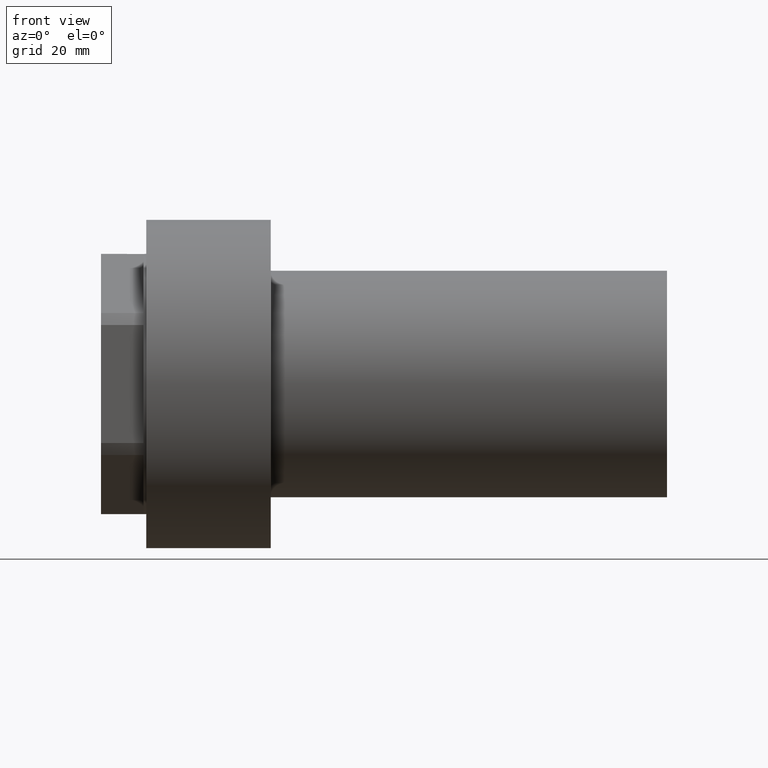
[diagram: clean part render]
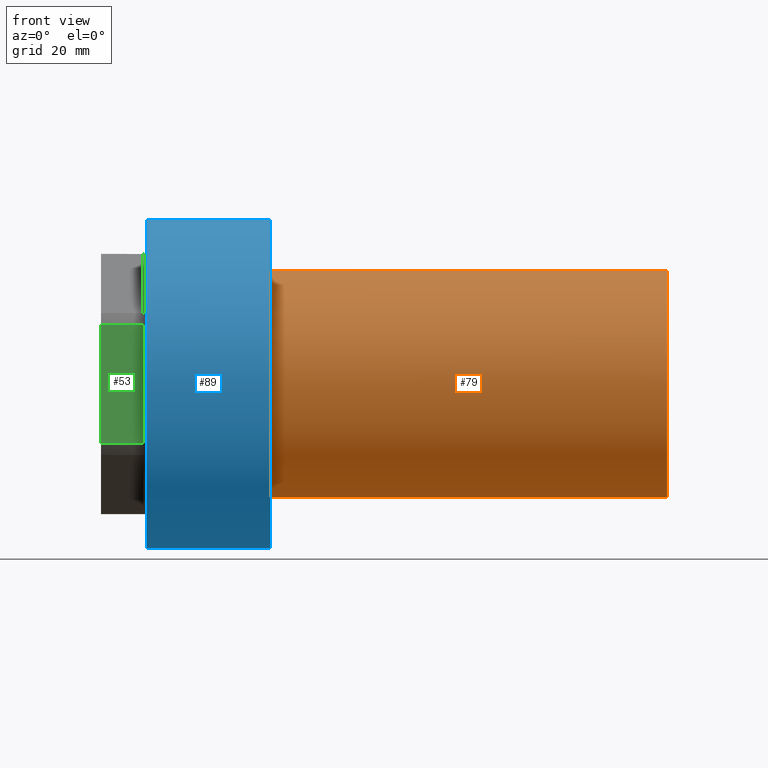
[diagram: same view with three faces highlighted in distinct colors, each labeled with its STEP entity id]
A machine part, front view with three faces highlighted in distinct colors.
Their STEP definitions:

[orange] entity #79 — the highlighted cylindrical surface (bore or boss wall) has radius 20 mm, axis along (-1, -0, -0).
#79 = ADVANCED_FACE( '', ( #169, #170 ), #171, .T. );
#169 = FACE_OUTER_BOUND( '', #268, .T. );
#170 = FACE_OUTER_BOUND( '', #269, .T. );
#171 = CYLINDRICAL_SURFACE( '', #270, 20.0000000000000 );
#268 = EDGE_LOOP( '', ( #415, #416, #417, #418 ) );
#269 = EDGE_LOOP( '', ( #419 ) );
#270 = AXIS2_PLACEMENT_3D( '', #420, #421, #422 );
#415 = ORIENTED_EDGE( '', *, *, #553, .F. );
#416 = ORIENTED_EDGE( '', *, *, #580, .T. );
#417 = ORIENTED_EDGE( '', *, *, #562, .T. );
#418 = ORIENTED_EDGE( '', *, *, #581, .T. );
#419 = ORIENTED_EDGE( '', *, *, #567, .T. );
#420 = CARTESIAN_POINT( '', ( 38.3031897014172, 0.000000000000000, 0.000000000000000 ) );
#421 = DIRECTION( '', ( -1.00000000000000, -0.000000000000000, -0.000000000000000 ) );
#422 = DIRECTION( '', ( 0.000000000000000, 0.000000000000000, -1.00000000000000 ) );
#553 = EDGE_CURVE( '', #653, #654, #655, .T. );
#562 = EDGE_CURVE( '', #666, #667, #669, .T. );
#567 = EDGE_CURVE( '', #676, #676, #677, .T. );
#580 = EDGE_CURVE( '', #653, #666, #695, .F. );
#581 = EDGE_CURVE( '', #667, #654, #696, .T. );
#653 = VERTEX_POINT( '', #781 );
#654 = VERTEX_POINT( '', #782 );
#655 = CIRCLE( '', #783, 20.0000000000000 );
#666 = VERTEX_POINT( '', #795 );
#667 = VERTEX_POINT( '', #796 );
#669 = ELLIPSE( '', #799, 28.2842712474619, 20.0000000000000 );
#676 = VERTEX_POINT( '', #807 );
#677 = CIRCLE( '', #808, 20.0000000000000 );
#695 = LINE( '', #832, #833 );
#696 = LINE( '', #834, #835 );
#781 = CARTESIAN_POINT( '', ( 92.0000000000000, 18.0000000000000, 8.71779788708132 ) );
#782 = CARTESIAN_POINT( '', ( 92.0000000000000, 18.0000000000000, -8.71779788708132 ) );
#783 = AXIS2_PLACEMENT_3D( '', #910, #911, #912 );
#795 = CARTESIAN_POINT( '', ( 26.0000000000000, 18.0000000000000, 8.71779788708130 ) );
#796 = CARTESIAN_POINT( '', ( 26.0000000000000, 18.0000000000000, -8.71779788708130 ) );
#799 = AXIS2_PLACEMENT_3D( '', #924, #925, #926 );
#807 = CARTESIAN_POINT( '', ( 22.0000000000000, 0.000000000000000, -20.0000000000000 ) );
#808 = AXIS2_PLACEMENT_3D( '', #931, #932, #933 );
#832 = CARTESIAN_POINT( '', ( 38.3031897014172, 18.0000000000000, 8.71779788708132 ) );
#833 = VECTOR( '', #946, 1000.00000000000 );
#834 = CARTESIAN_POINT( '', ( 38.3031897014172, 18.0000000000000, -8.71779788708132 ) );
#835 = VECTOR( '', #947, 1000.00000000000 );
#910 = CARTESIAN_POINT( '', ( 92.0000000000000, 0.000000000000000, 0.000000000000000 ) );
#911 = DIRECTION( '', ( 1.00000000000000, 0.000000000000000, 0.000000000000000 ) );
#912 = DIRECTION( '', ( 0.000000000000000, 0.000000000000000, -1.00000000000000 ) );
#924 = CARTESIAN_POINT( '', ( 44.0000000000000, 0.000000000000000, 0.000000000000000 ) );
#925 = DIRECTION( '', ( -0.707106781186549, -0.707106781186546, 0.000000000000000 ) );
#926 = DIRECTION( '', ( 0.707106781186546, -0.707106781186549, 0.000000000000000 ) );
#931 = CARTESIAN_POINT( '', ( 22.0000000000000, 0.000000000000000, 0.000000000000000 ) );
#932 = DIRECTION( '', ( 1.00000000000000, 0.000000000000000, 0.000000000000000 ) );
#933 = DIRECTION( '', ( 0.000000000000000, 0.000000000000000, -1.00000000000000 ) );
#946 = DIRECTION( '', ( 1.00000000000000, 0.000000000000000, 0.000000000000000 ) );
#947 = DIRECTION( '', ( 1.00000000000000, 0.000000000000000, 0.000000000000000 ) );

[blue] entity #89 — the highlighted cylindrical surface (bore or boss wall) has radius 29 mm, axis along (-1, -0, -0).
#89 = ADVANCED_FACE( '', ( #187, #188 ), #189, .T. );
#187 = FACE_OUTER_BOUND( '', #286, .T. );
#188 = FACE_OUTER_BOUND( '', #287, .T. );
#189 = CYLINDRICAL_SURFACE( '', #288, 29.0000000000000 );
#286 = EDGE_LOOP( '', ( #450 ) );
#287 = EDGE_LOOP( '', ( #451 ) );
#288 = AXIS2_PLACEMENT_3D( '', #452, #453, #454 );
#450 = ORIENTED_EDGE( '', *, *, #568, .F. );
#451 = ORIENTED_EDGE( '', *, *, #550, .T. );
#452 = CARTESIAN_POINT( '', ( 38.3031897014172, 0.000000000000000, 0.000000000000000 ) );
#453 = DIRECTION( '', ( -1.00000000000000, -0.000000000000000, -0.000000000000000 ) );
#454 = DIRECTION( '', ( 0.000000000000000, 0.000000000000000, -1.00000000000000 ) );
#550 = EDGE_CURVE( '', #648, #648, #649, .T. );
#568 = EDGE_CURVE( '', #678, #678, #679, .T. );
#648 = VERTEX_POINT( '', #776 );
#649 = CIRCLE( '', #777, 29.0000000000000 );
#678 = VERTEX_POINT( '', #809 );
#679 = CIRCLE( '', #810, 29.0000000000000 );
#776 = CARTESIAN_POINT( '', ( 6.93889390390723E-015, 0.000000000000000, -29.0000000000000 ) );
#777 = AXIS2_PLACEMENT_3D( '', #904, #905, #906 );
#809 = CARTESIAN_POINT( '', ( 22.0000000000000, 0.000000000000000, -29.0000000000000 ) );
#810 = AXIS2_PLACEMENT_3D( '', #934, #935, #936 );
#904 = CARTESIAN_POINT( '', ( 6.93889390390723E-015, 0.000000000000000, 0.000000000000000 ) );
#905 = DIRECTION( '', ( 1.00000000000000, 0.000000000000000, 0.000000000000000 ) );
#906 = DIRECTION( '', ( 0.000000000000000, 0.000000000000000, -1.00000000000000 ) );
#934 = CARTESIAN_POINT( '', ( 22.0000000000000, 0.000000000000000, 0.000000000000000 ) );
#935 = DIRECTION( '', ( 1.00000000000000, 0.000000000000000, 0.000000000000000 ) );
#936 = DIRECTION( '', ( 0.000000000000000, 0.000000000000000, -1.00000000000000 ) );

[green] entity #53 — the highlighted planar face has unit normal (0, 1, 0).
#53 = ADVANCED_FACE( '', ( #125 ), #126, .F. );
#125 = FACE_OUTER_BOUND( '', #224, .T. );
#126 = PLANE( '', #225 );
#224 = EDGE_LOOP( '', ( #320, #321, #322, #323 ) );
#225 = AXIS2_PLACEMENT_3D( '', #324, #325, #326 );
#320 = ORIENTED_EDGE( '', *, *, #529, .T. );
#321 = ORIENTED_EDGE( '', *, *, #530, .F. );
#322 = ORIENTED_EDGE( '', *, *, #531, .F. );
#323 = ORIENTED_EDGE( '', *, *, #532, .T. );
#324 = CARTESIAN_POINT( '', ( -0.500000000000007, -20.5000000000000, 10.4283268073071 ) );
#325 = DIRECTION( '', ( 0.000000000000000, 1.00000000000000, 0.000000000000000 ) );
#326 = DIRECTION( '', ( 0.000000000000000, 0.000000000000000, 1.00000000000000 ) );
#529 = EDGE_CURVE( '', #610, #611, #612, .T. );
#530 = EDGE_CURVE( '', #613, #611, #614, .T. );
#531 = EDGE_CURVE( '', #615, #613, #616, .T. );
#532 = EDGE_CURVE( '', #615, #610, #617, .T. );
#610 = VERTEX_POINT( '', #728 );
#611 = VERTEX_POINT( '', #729 );
#612 = LINE( '', #730, #731 );
#613 = VERTEX_POINT( '', #732 );
#614 = LINE( '', #733, #734 );
#615 = VERTEX_POINT( '', #735 );
#616 = LINE( '', #736, #737 );
#617 = LINE( '', #738, #739 );
#728 = CARTESIAN_POINT( '', ( -8.00000000000000, -20.5000000000000, 10.4283268073071 ) );
#729 = CARTESIAN_POINT( '', ( -8.00000000000000, -20.5000000000000, -10.4283268073071 ) );
#730 = CARTESIAN_POINT( '', ( -8.00000000000000, -20.5000000000000, 10.4283268073071 ) );
#731 = VECTOR( '', #870, 1000.00000000000 );
#732 = CARTESIAN_POINT( '', ( -0.500000000000007, -20.5000000000000, -10.4283268073071 ) );
#733 = CARTESIAN_POINT( '', ( -0.500000000000007, -20.5000000000000, -10.4283268073071 ) );
#734 = VECTOR( '', #871, 1000.00000000000 );
#735 = CARTESIAN_POINT( '', ( -0.500000000000007, -20.5000000000000, 10.4283268073071 ) );
#736 = CARTESIAN_POINT( '', ( -0.500000000000007, -20.5000000000000, 10.4283268073071 ) );
#737 = VECTOR( '', #872, 1000.00000000000 );
#738 = CARTESIAN_POINT( '', ( -0.500000000000007, -20.5000000000000, 10.4283268073071 ) );
#739 = VECTOR( '', #873, 1000.00000000000 );
#870 = DIRECTION( '', ( 0.000000000000000, 0.000000000000000, -1.00000000000000 ) );
#871 = DIRECTION( '', ( -1.00000000000000, 0.000000000000000, 0.000000000000000 ) );
#872 = DIRECTION( '', ( 0.000000000000000, 0.000000000000000, -1.00000000000000 ) );
#873 = DIRECTION( '', ( -1.00000000000000, 0.000000000000000, 0.000000000000000 ) );